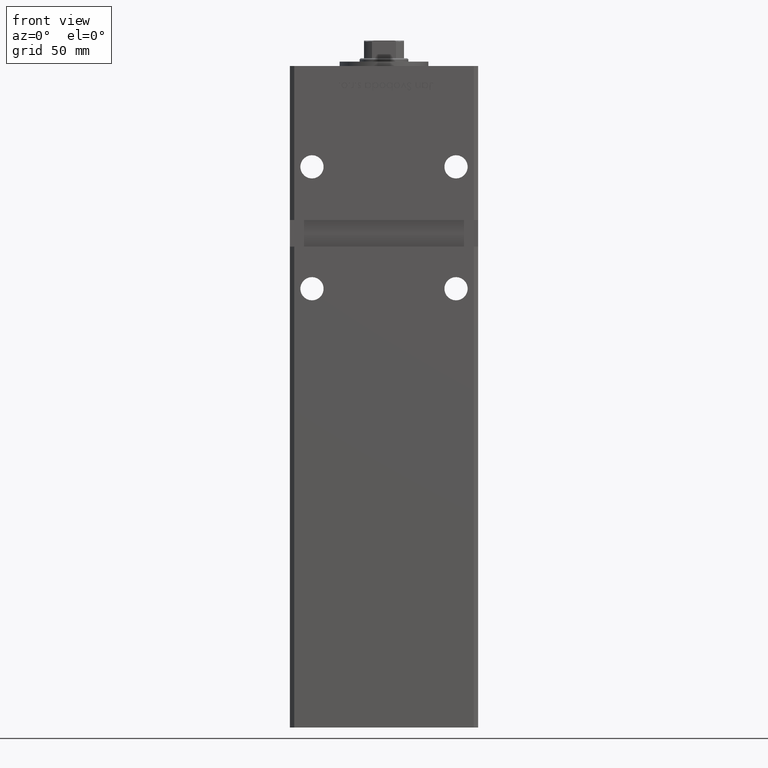
[diagram: clean part render]
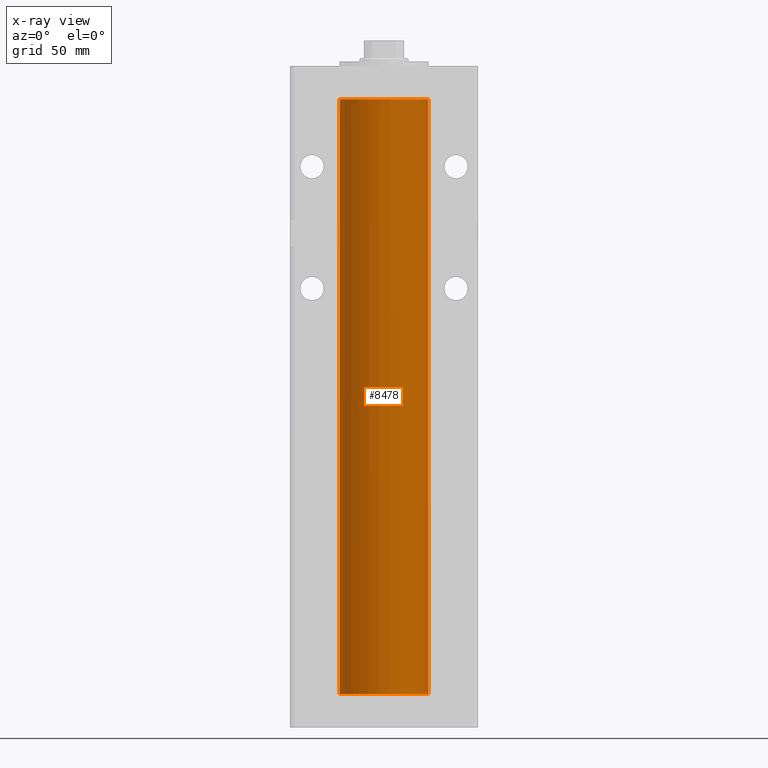
[diagram: x-ray — body ghosted, one internal face saturated and labeled with its STEP entity id]
A machine part, front view, then the same camera in x-ray: the body is ghosted and one INTERNAL B-rep face — a face not visible from any outside direction — is saturated and labeled: STEP entity #8478.
In plain terms, the highlighted cylindrical surface (partial cylindrical patch) has radius 20 mm, axis along (-0, -0, -1).
Its self-contained STEP definition (entity closure, byte-faithful):
#850 = EDGE_CURVE ( 'NONE', #51719, #5812, #32111, .T. ) ;
#884 = DIRECTION ( 'NONE',  ( 1.000000000000000000, 0.000000000000000000, 0.000000000000000000 ) ) ;
#1388 = DIRECTION ( 'NONE',  ( 1.000000000000000000, 0.000000000000000000, 0.000000000000000000 ) ) ;
#5812 = VERTEX_POINT ( 'NONE', #20776 ) ;
#8478 = ADVANCED_FACE ( 'NONE', ( #27261 ), #44185, .F. ) ;
#8739 = EDGE_CURVE ( 'NONE', #38240, #38953, #24272, .T. ) ;
#12243 = AXIS2_PLACEMENT_3D ( 'NONE', #23760, #22948, #36134 ) ;
#14438 = DIRECTION ( 'NONE',  ( -0.000000000000000000, -0.000000000000000000, -1.000000000000000000 ) ) ;
#16251 = ORIENTED_EDGE ( 'NONE', *, *, #850, .F. ) ;
#18147 = ORIENTED_EDGE ( 'NONE', *, *, #8739, .T. ) ;
#18464 = ORIENTED_EDGE ( 'NONE', *, *, #45759, .T. ) ;
#18500 = CARTESIAN_POINT ( 'NONE',  ( -20.00000000000000000, 0.000000000000000000, 268.5000000000000000 ) ) ;
#20776 = CARTESIAN_POINT ( 'NONE',  ( 20.00000000000000000, 2.449293598294706513E-15, 0.000000000000000000 ) ) ;
#21026 = CARTESIAN_POINT ( 'NONE',  ( 20.00000000000000000, 2.449293598294706513E-15, 268.5000000000000000 ) ) ;
#22006 = EDGE_LOOP ( 'NONE', ( #18147, #18464, #16251, #38040 ) ) ;
#22065 = DIRECTION ( 'NONE',  ( -0.000000000000000000, -0.000000000000000000, -1.000000000000000000 ) ) ;
#22948 = DIRECTION ( 'NONE',  ( -0.000000000000000000, -0.000000000000000000, -1.000000000000000000 ) ) ;
#23323 = CARTESIAN_POINT ( 'NONE',  ( 20.00000000000000000, 2.449293598294706513E-15, 268.5000000000000000 ) ) ;
#23760 = CARTESIAN_POINT ( 'NONE',  ( 0.000000000000000000, 0.000000000000000000, 268.5000000000000000 ) ) ;
#24272 = CIRCLE ( 'NONE', #49167, 20.00000000000000000 ) ;
#24868 = CARTESIAN_POINT ( 'NONE',  ( -20.00000000000000000, 0.000000000000000000, 0.000000000000000000 ) ) ;
#25088 = CARTESIAN_POINT ( 'NONE',  ( 0.000000000000000000, 0.000000000000000000, 0.000000000000000000 ) ) ;
#27261 = FACE_OUTER_BOUND ( 'NONE', #22006, .T. ) ;
#27432 = EDGE_CURVE ( 'NONE', #38240, #51719, #51285, .T. ) ;
#29404 = CARTESIAN_POINT ( 'NONE',  ( 0.000000000000000000, 0.000000000000000000, 268.5000000000000000 ) ) ;
#29826 = VECTOR ( 'NONE', #22065, 1000.000000000000000 ) ;
#32111 = CIRCLE ( 'NONE', #44990, 20.00000000000000000 ) ;
#36134 = DIRECTION ( 'NONE',  ( -1.000000000000000000, 0.000000000000000000, 0.000000000000000000 ) ) ;
#37969 = DIRECTION ( 'NONE',  ( -0.000000000000000000, 0.000000000000000000, 1.000000000000000000 ) ) ;
#38040 = ORIENTED_EDGE ( 'NONE', *, *, #27432, .F. ) ;
#38240 = VERTEX_POINT ( 'NONE', #45502 ) ;
#38953 = VERTEX_POINT ( 'NONE', #21026 ) ;
#41729 = DIRECTION ( 'NONE',  ( -0.000000000000000000, 0.000000000000000000, 1.000000000000000000 ) ) ;
#43756 = LINE ( 'NONE', #23323, #29826 ) ;
#44185 = CYLINDRICAL_SURFACE ( 'NONE', #12243, 20.00000000000000000 ) ;
#44990 = AXIS2_PLACEMENT_3D ( 'NONE', #25088, #37969, #884 ) ;
#45502 = CARTESIAN_POINT ( 'NONE',  ( -20.00000000000000000, 0.000000000000000000, 268.5000000000000000 ) ) ;
#45759 = EDGE_CURVE ( 'NONE', #38953, #5812, #43756, .T. ) ;
#47010 = VECTOR ( 'NONE', #14438, 1000.000000000000000 ) ;
#49167 = AXIS2_PLACEMENT_3D ( 'NONE', #29404, #41729, #1388 ) ;
#51285 = LINE ( 'NONE', #18500, #47010 ) ;
#51719 = VERTEX_POINT ( 'NONE', #24868 ) ;